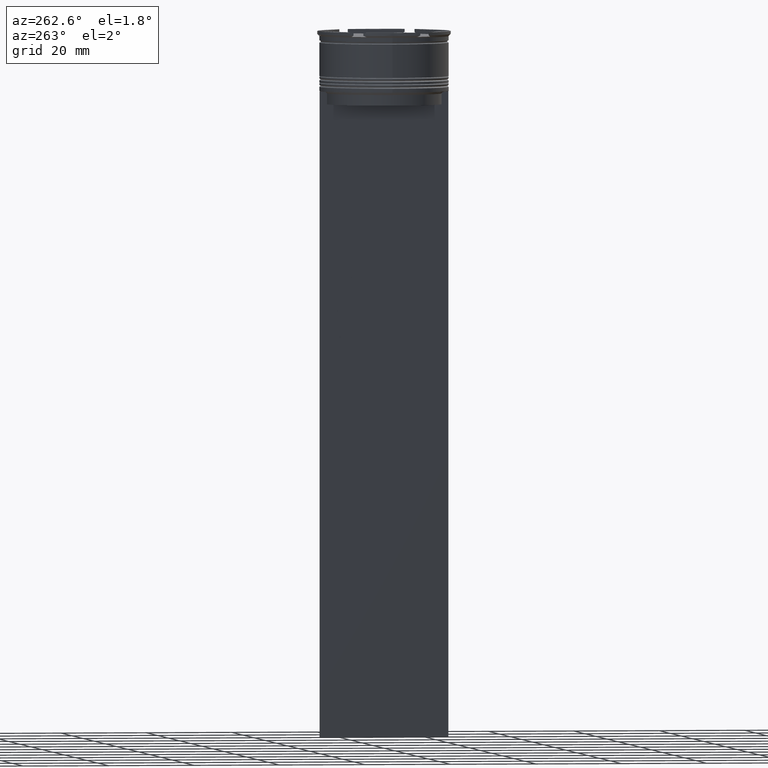
[diagram: clean part render]
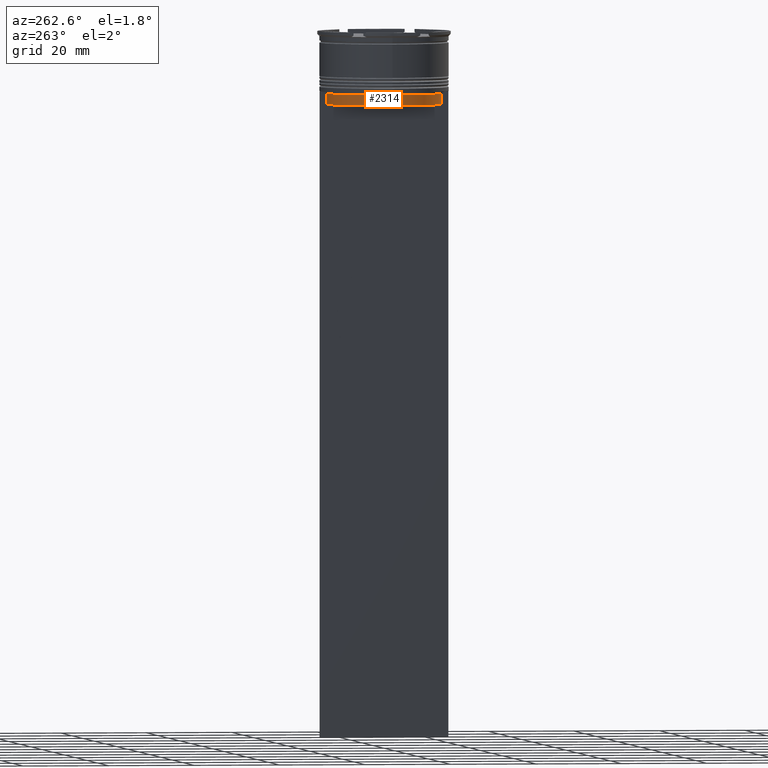
[diagram: same view with one face highlighted and labeled with its STEP entity id]
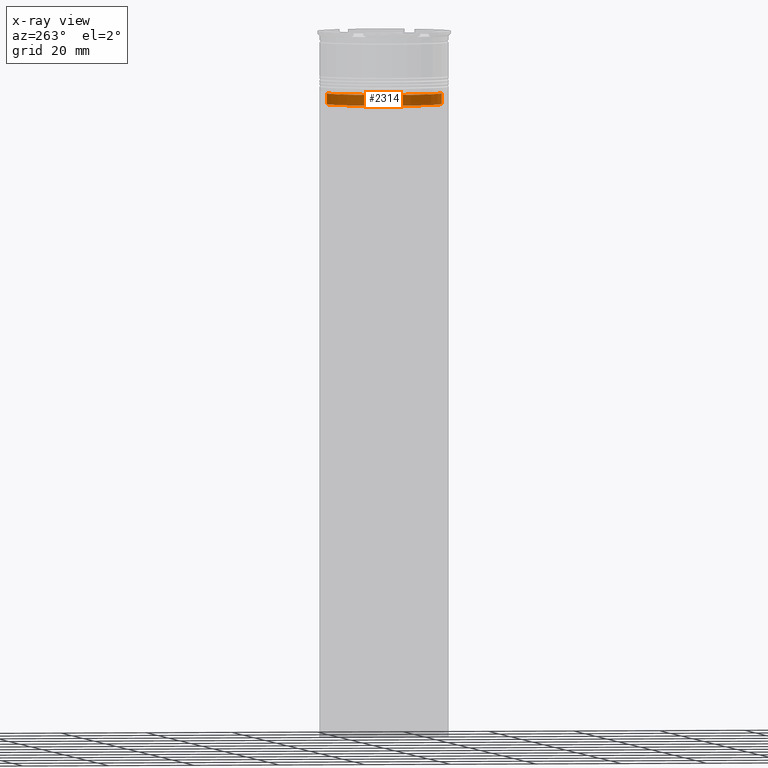
[diagram: x-ray of the same camera — body ghosted, the highlighted face saturated]
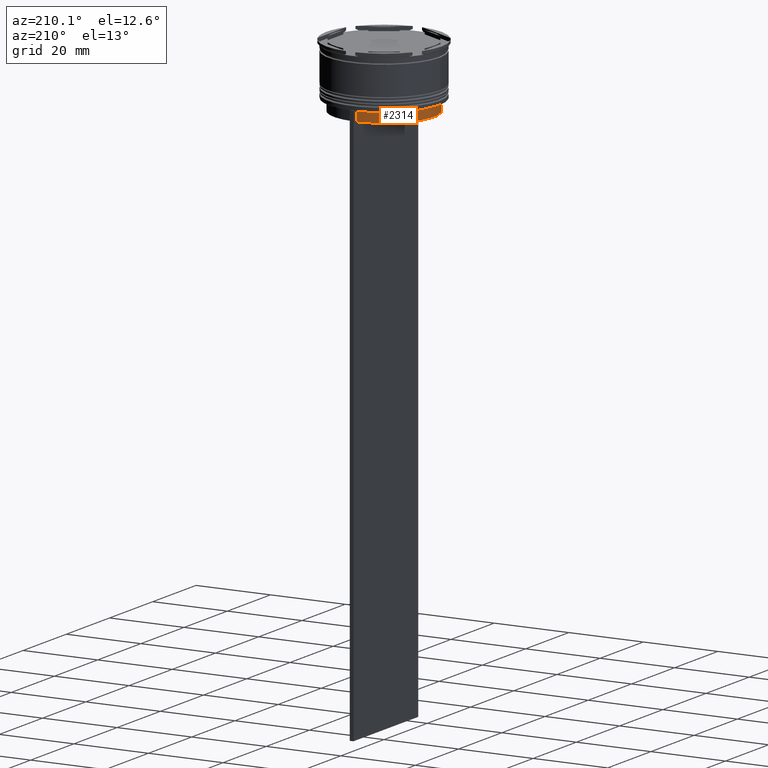
[diagram: same view with one face highlighted and labeled with its STEP entity id]
A machine part, auxiliary view. The second image highlights one B-rep face of the part: STEP entity #2314.
The next image is the same camera in x-ray: the body ghosted, the highlighted face saturated — about 0% of this face is hidden behind the body in this view.
A second angle (auxiliary view) of the same face is appended — the face is thin or edge-on in the first view.
In plain terms, the highlighted cylindrical surface (partial cylindrical patch) has radius 13.4 mm, axis along (-0, -0, 1).
Its self-contained STEP definition (entity closure, byte-faithful):
#6 = EDGE_CURVE ( 'NONE', #434, #961, #76, .T. ) ;
#11 = DIRECTION ( 'NONE',  ( 1.000000000000000000, 0.000000000000000000, 0.000000000000000000 ) ) ;
#76 = LINE ( 'NONE', #939, #118 ) ;
#118 = VECTOR ( 'NONE', #2022, 1000.000000000000000 ) ;
#128 = AXIS2_PLACEMENT_3D ( 'NONE', #1721, #1555, #833 ) ;
#188 = VERTEX_POINT ( 'NONE', #2099 ) ;
#418 = AXIS2_PLACEMENT_3D ( 'NONE', #441, #2424, #11 ) ;
#434 = VERTEX_POINT ( 'NONE', #2514 ) ;
#441 = CARTESIAN_POINT ( 'NONE',  ( 0.000000000000000000, 0.000000000000000000, 0.000000000000000000 ) ) ;
#543 = DIRECTION ( 'NONE',  ( -0.000000000000000000, -0.000000000000000000, 1.000000000000000000 ) ) ;
#607 = VECTOR ( 'NONE', #543, 1000.000000000000000 ) ;
#810 = CARTESIAN_POINT ( 'NONE',  ( -0.4999999999999998890, -13.39066839257847086, -17.00000000000000000 ) ) ;
#833 = DIRECTION ( 'NONE',  ( 1.000000000000000000, 0.000000000000000000, 0.000000000000000000 ) ) ;
#882 = FACE_OUTER_BOUND ( 'NONE', #1813, .T. ) ;
#937 = CIRCLE ( 'NONE', #982, 13.40000000000000746 ) ;
#939 = CARTESIAN_POINT ( 'NONE',  ( -0.4999999999999998890, 13.39066839257847263, 0.000000000000000000 ) ) ;
#959 = LINE ( 'NONE', #2290, #607 ) ;
#961 = VERTEX_POINT ( 'NONE', #2645 ) ;
#982 = AXIS2_PLACEMENT_3D ( 'NONE', #2344, #2319, #1504 ) ;
#1416 = EDGE_CURVE ( 'NONE', #961, #1829, #1663, .T. ) ;
#1504 = DIRECTION ( 'NONE',  ( 1.000000000000000000, 0.000000000000000000, 0.000000000000000000 ) ) ;
#1555 = DIRECTION ( 'NONE',  ( -0.000000000000000000, -0.000000000000000000, 1.000000000000000000 ) ) ;
#1604 = ORIENTED_EDGE ( 'NONE', *, *, #1416, .T. ) ;
#1663 = CIRCLE ( 'NONE', #128, 13.40000000000000391 ) ;
#1721 = CARTESIAN_POINT ( 'NONE',  ( 0.000000000000000000, 0.000000000000000000, -17.00000000000000000 ) ) ;
#1789 = ORIENTED_EDGE ( 'NONE', *, *, #2093, .T. ) ;
#1813 = EDGE_LOOP ( 'NONE', ( #1604, #1789, #2867, #1818 ) ) ;
#1818 = ORIENTED_EDGE ( 'NONE', *, *, #6, .T. ) ;
#1829 = VERTEX_POINT ( 'NONE', #810 ) ;
#2022 = DIRECTION ( 'NONE',  ( 0.000000000000000000, 0.000000000000000000, -1.000000000000000000 ) ) ;
#2093 = EDGE_CURVE ( 'NONE', #1829, #188, #959, .T. ) ;
#2099 = CARTESIAN_POINT ( 'NONE',  ( -0.4999999999999998890, -13.39066839257847263, -14.49999999999999822 ) ) ;
#2207 = EDGE_CURVE ( 'NONE', #434, #188, #937, .T. ) ;
#2290 = CARTESIAN_POINT ( 'NONE',  ( -0.4999999999999998890, -13.39066839257847263, 0.000000000000000000 ) ) ;
#2314 = ADVANCED_FACE ( 'NONE', ( #882 ), #2666, .T. ) ;
#2319 = DIRECTION ( 'NONE',  ( -0.000000000000000000, -0.000000000000000000, 1.000000000000000000 ) ) ;
#2344 = CARTESIAN_POINT ( 'NONE',  ( 0.000000000000000000, 0.000000000000000000, -14.49999999999999822 ) ) ;
#2424 = DIRECTION ( 'NONE',  ( -0.000000000000000000, -0.000000000000000000, 1.000000000000000000 ) ) ;
#2514 = CARTESIAN_POINT ( 'NONE',  ( -0.4999999999999998890, 13.39066839257847263, -14.49999999999999822 ) ) ;
#2645 = CARTESIAN_POINT ( 'NONE',  ( -0.4999999999999998890, 13.39066839257847086, -17.00000000000000000 ) ) ;
#2666 = CYLINDRICAL_SURFACE ( 'NONE', #418, 13.40000000000000568 ) ;
#2867 = ORIENTED_EDGE ( 'NONE', *, *, #2207, .F. ) ;